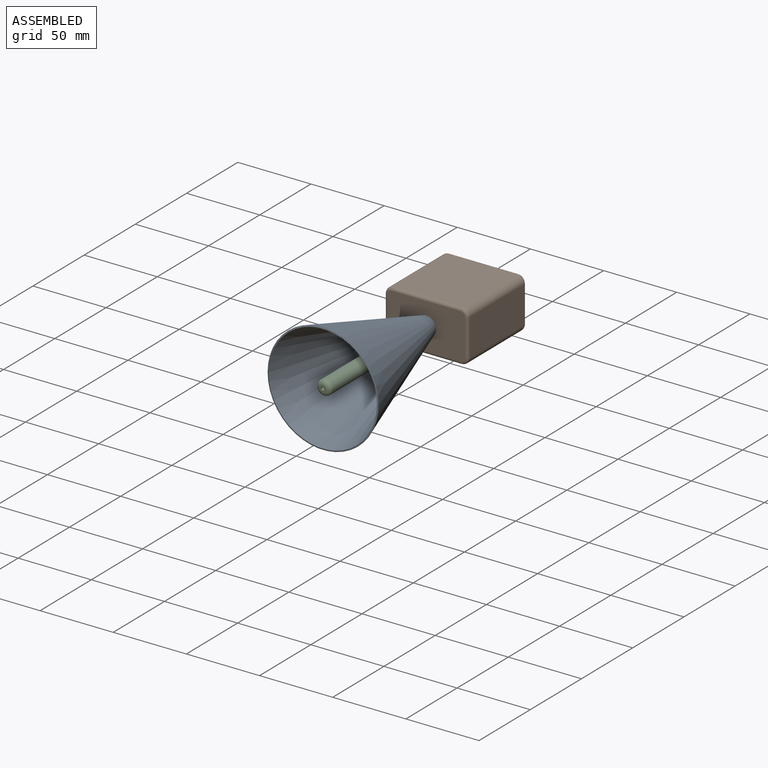
[diagram: assembled view]
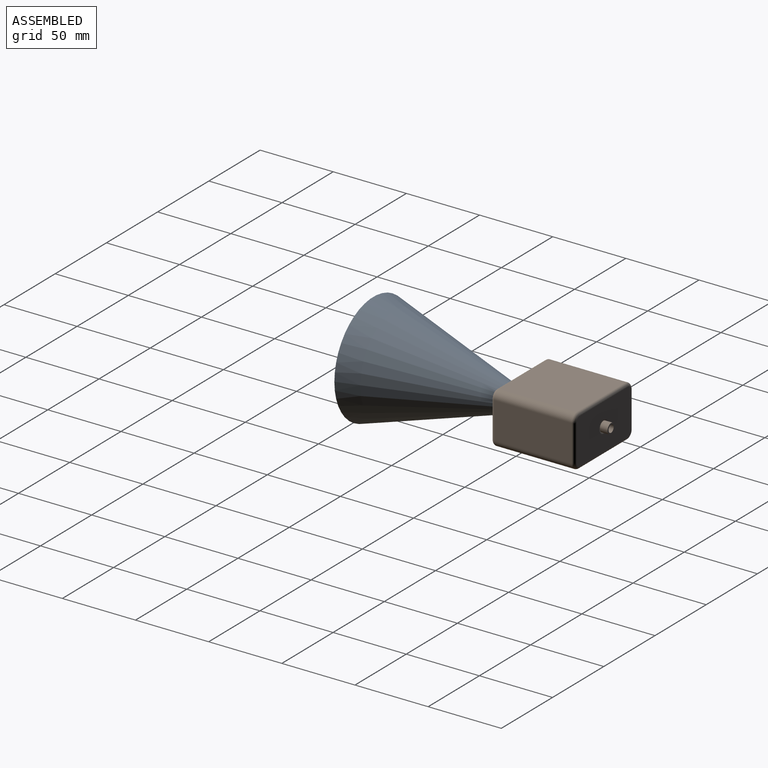
[diagram: assembled view, second angle]
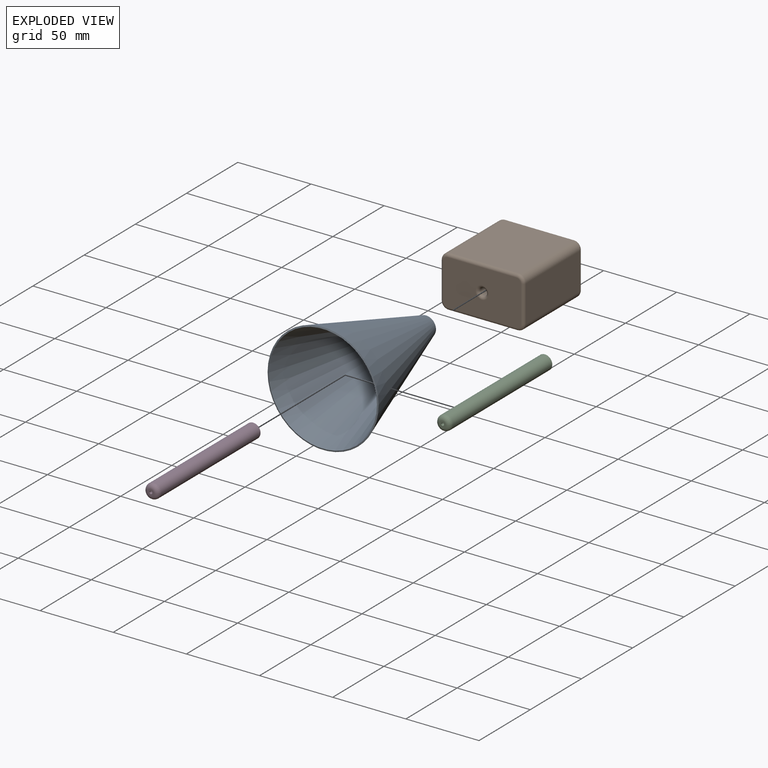
[diagram: exploded view]
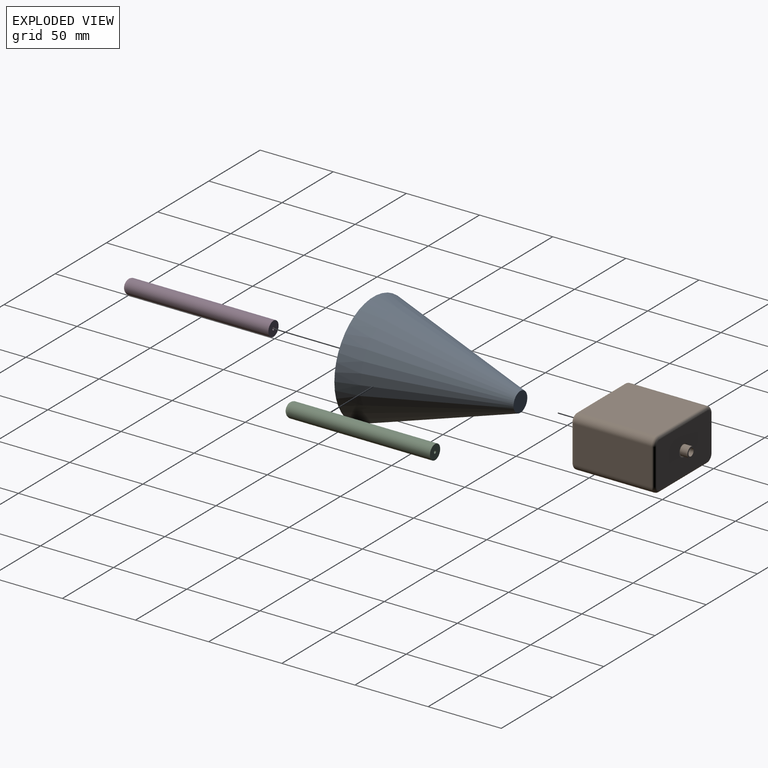
[diagram: exploded view, second angle]
ASSEMBLY  parts=4 mates=2
PART A: 5 faces, bbox 100.9x75.9x75.9 mm
  f0: cone r=37mm half-angle=72.8deg, axis (1,0,0), area 235.5mm2, adj f1,f3
  f1: cone r=6.96mm half-angle=17.2deg, axis (-1,0,0), area 14785.7mm2, adj f0,f2
  f2: plane 13.47x13.47mm, normal (1,0,0), area 142.6mm2, adj f1
  f3: cone r=6mm half-angle=17.2deg, axis (-1,0,0), area 14126.5mm2, adj f0,f4
  f4: plane 12x12mm, normal (-1,0,0), area 113.1mm2, adj f3
PART B: 31 faces, bbox 57.8x62x35.8 mm
  f0: plane 53x47mm, normal (0,0,-1), area 2491mm2, adj f7,f10,f17,f25
  f1: plane 53x25mm, normal (1,0,0), area 1325mm2, adj f7,f8,f16,f26
  f2: plane 53x47mm, normal (0,0,1), area 2491mm2, adj f8,f9,f12,f22
  f3: cylinder r=2.5mm len=60mm, axis (0,1,0), area 942.5mm2, adj f28,f29
  f4: plane 53x25mm, normal (-1,0,0), area 1325mm2, adj f9,f10,f13,f21
  f5: plane 53x31mm, normal (0,-1,0), area 1571.7mm2, adj f20,f21,f22,f23,f24,f25,f26,f27
  f6: plane 53x31mm, normal (0,1,0), area 1571.7mm2, adj f11,f12,f13,f14,f15,f16,f17,f18
  f7: cylinder r=5mm len=53mm, axis (0,1,0), area 416.3mm2, adj f0,f1,f18,f27
  f8: cylinder r=5mm len=53mm, axis (0,-1,0), area 416.3mm2, adj f1,f2,f14,f24
  f9: cylinder r=5mm len=53mm, axis (0,1,0), area 416.3mm2, adj f2,f4,f11,f20
  f10: cylinder r=5mm len=53mm, axis (0,-1,0), area 416.3mm2, adj f0,f4,f15,f23
  f11: torus R=3mm, axis (0,-1,0), area 21.1mm2, adj f6,f9,f12,f13
  f12: cylinder r=2mm len=47mm, axis (-1,0,0), area 147.7mm2, adj f2,f6,f11,f14
  f13: cylinder r=2mm len=25mm, axis (0,0,-1), area 78.5mm2, adj f4,f6,f11,f15
  f14: torus R=3mm, axis (0,-1,0), area 21.1mm2, adj f6,f8,f12,f16
  f15: torus R=3mm, axis (0,-1,0), area 21.1mm2, adj f6,f10,f13,f17
  f16: cylinder r=2mm len=25mm, axis (0,0,1), area 78.5mm2, adj f1,f6,f14,f18
  f17: cylinder r=2mm len=47mm, axis (1,0,0), area 147.7mm2, adj f0,f6,f15,f18
  f18: torus R=3mm, axis (0,-1,0), area 21.1mm2, adj f6,f7,f16,f17
  f19: torus R=4.5mm, axis (0,-1,0), area 26.2mm2, adj f6,f30
  f20: torus R=3mm, axis (0,-1,0), area 21.1mm2, adj f5,f9,f21,f22
  f21: cylinder r=2mm len=25mm, axis (0,0,1), area 78.5mm2, adj f4,f5,f20,f23
  f22: cylinder r=2mm len=47mm, axis (1,0,0), area 147.7mm2, adj f2,f5,f20,f24
  f23: torus R=3mm, axis (0,-1,0), area 21.1mm2, adj f5,f10,f21,f25
  f24: torus R=3mm, axis (0,-1,0), area 21.1mm2, adj f5,f8,f22,f26
  f25: cylinder r=2mm len=47mm, axis (-1,0,0), area 147.7mm2, adj f0,f5,f23,f27
  f26: cylinder r=2mm len=25mm, axis (0,0,-1), area 78.5mm2, adj f1,f5,f24,f27
  f27: torus R=3mm, axis (0,-1,0), area 21.1mm2, adj f5,f7,f25,f26
  f28: torus R=4.5mm, axis (0,-1,0), area 63.7mm2, adj f3,f5
  f29: plane 7x7mm, normal (0,1,0), area 18.8mm2, adj f3,f30
  f30: cylinder r=3.5mm len=7mm, axis (0,-1,0), area 115.8mm2, adj f19,f29
PART C: 5 faces, bbox 10x100x10 mm
  f0: plane 10x10mm, normal (0,1,0), area 75.4mm2, adj f2,f3
  f1: plane 4.21x4.21mm, normal (0,-1,0), area 10.8mm2, adj f3,f4
  f2: cylinder r=5mm len=97.1mm, axis (0,-1,0), area 3050.6mm2, adj f0,f4
  f3: cylinder r=1mm len=100mm, axis (0,-1,0), area 628.3mm2, adj f0,f1
  f4: torus R=2.1mm, axis (0,1,0), area 112.9mm2, adj f1,f2
PART D: same geometry as C
PLACE A rot(axis=(0.58,0.58,0.58),120deg) t=(11.2,9.87,44.32)mm
PLACE B t=(11.2,67.87,44.32)mm
PLACE C t=(11.2,9.87,44.32)mm
PLACE D t=(11.2,9.87,44.32)mm
MATE fastened A.f0 <-> D.f2  axis (0,-1,0) through (11.2,9.87,44.32)mm
MATE fastened B.f3 <-> A.f0  axis (0,1,0) through (11.2,12.87,44.32)mm
